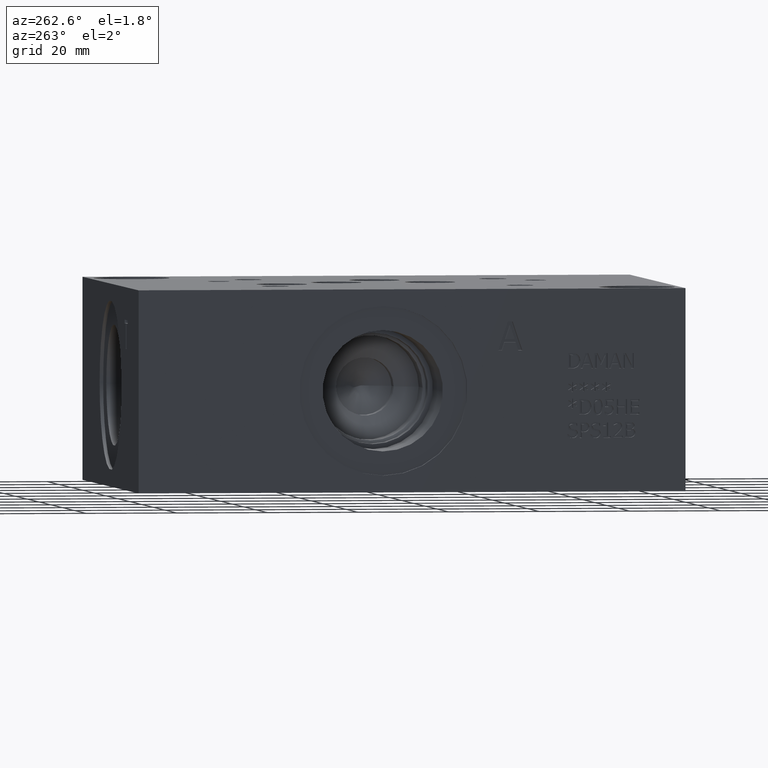
[diagram: clean part render]
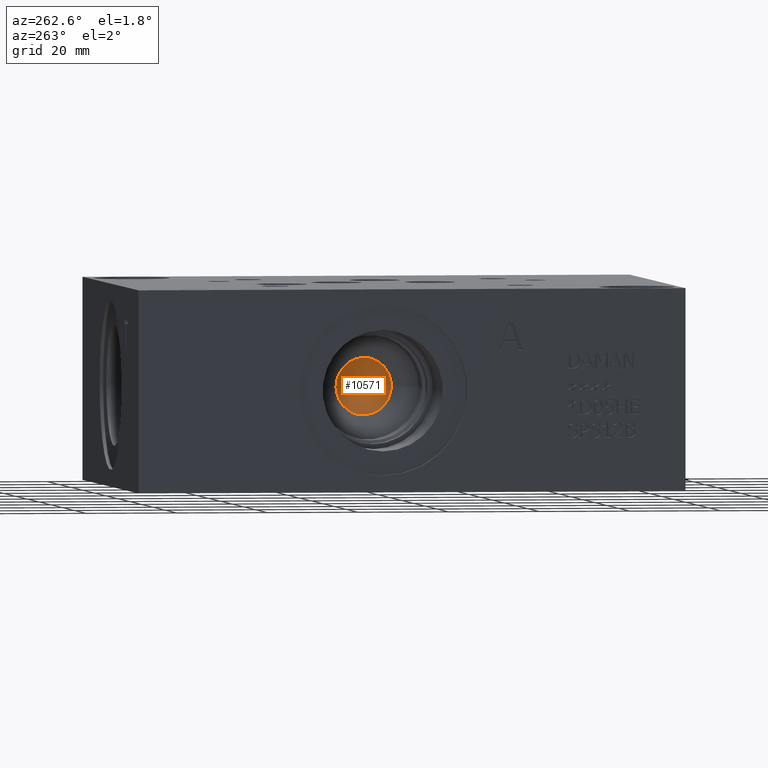
[diagram: same view with one face highlighted and labeled with its STEP entity id]
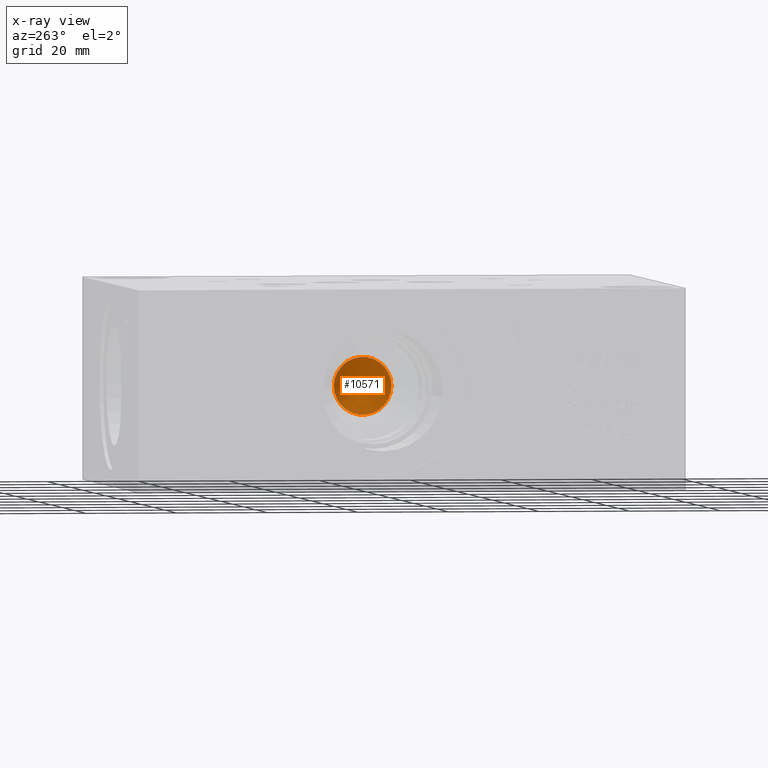
[diagram: x-ray of the same camera — body ghosted, the highlighted face saturated]
A machine part, auxiliary view. The second image highlights one B-rep face of the part: STEP entity #10571.
The next image is the same camera in x-ray: the body ghosted, the highlighted face saturated — about 0% of this face is hidden behind the body in this view.
In plain terms, the highlighted conical surface has half-angle 60 deg.
Its self-contained STEP definition (entity closure, byte-faithful):
#23=CONICAL_SURFACE('',#11072,3.175,1.0471975511966);
#159=CIRCLE('',#11073,6.35);
#160=CIRCLE('',#11074,6.35);
#1190=FACE_OUTER_BOUND('',#1779,.T.);
#1779=EDGE_LOOP('',(#9033,#9034,#9035,#9036));
#2855=LINE('',#17796,#3895);
#3895=VECTOR('',#13085,3.175);
#4839=VERTEX_POINT('',#17792);
#4840=VERTEX_POINT('',#17793);
#4841=VERTEX_POINT('',#17795);
#6271=EDGE_CURVE('',#4839,#4840,#159,.T.);
#6272=EDGE_CURVE('',#4840,#4841,#2855,.T.);
#6273=EDGE_CURVE('',#4840,#4839,#160,.T.);
#9033=ORIENTED_EDGE('',*,*,#6271,.T.);
#9034=ORIENTED_EDGE('',*,*,#6272,.T.);
#9035=ORIENTED_EDGE('',*,*,#6272,.F.);
#9036=ORIENTED_EDGE('',*,*,#6273,.T.);
#10571=ADVANCED_FACE('',(#1190),#23,.F.);
#11072=AXIS2_PLACEMENT_3D('',#17791,#13081,#13082);
#11073=AXIS2_PLACEMENT_3D('',#17794,#13083,#13084);
#11074=AXIS2_PLACEMENT_3D('',#17797,#13086,#13087);
#13081=DIRECTION('center_axis',(-1.,0.,0.));
#13082=DIRECTION('ref_axis',(0.,1.,0.));
#13083=DIRECTION('center_axis',(-1.,0.,0.));
#13084=DIRECTION('ref_axis',(0.,1.,0.));
#13085=DIRECTION('',(0.5,0.866025403784439,-1.06057523872491E-16));
#13086=DIRECTION('center_axis',(-1.,0.,0.));
#13087=DIRECTION('ref_axis',(0.,1.,0.));
#17791=CARTESIAN_POINT('Origin',(36.8733971046771,66.675,22.225));
#17792=CARTESIAN_POINT('',(35.04031,73.025,22.225));
#17793=CARTESIAN_POINT('',(35.04031,60.325,22.225));
#17794=CARTESIAN_POINT('Origin',(35.04031,66.675,22.225));
#17795=CARTESIAN_POINT('',(38.7064842093541,66.675,22.225));
#17796=CARTESIAN_POINT('',(36.8733971046771,63.5,22.225));
#17797=CARTESIAN_POINT('Origin',(35.04031,66.675,22.225));